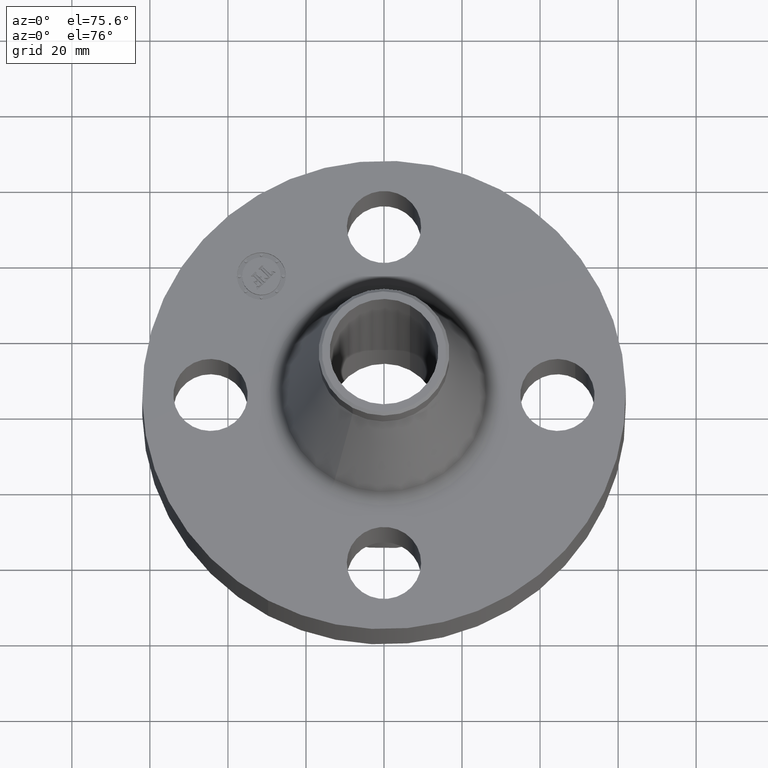
[diagram: clean part render]
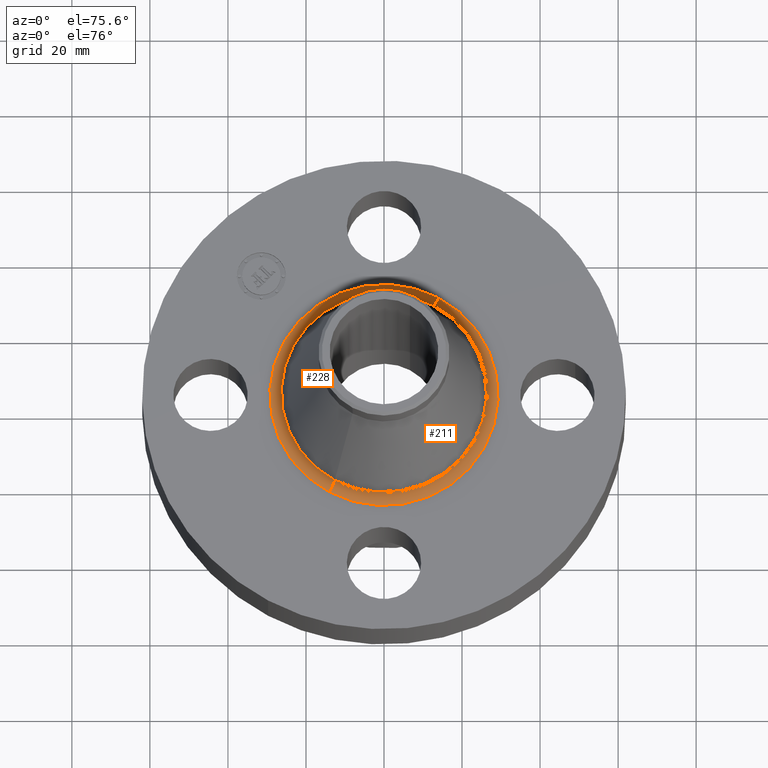
[diagram: same view with one multi-face feature highlighted, each face labeled with its STEP entity id]
A machine part, auxiliary view. The highlighted faces form ONE feature: a constant-radius fillet chain: 2 tangent blend faces with common blend radius 3.048 mm. The faces share edges in the B-rep.
Their STEP definitions:
[1] entity #228 (Torus):
#175=AXIS2_PLACEMENT_3D('Torus Axis2P3D',#172,#173,#174) ;
#188=AXIS2_PLACEMENT_3D('Circle Axis2P3D',#186,#187,$) ;
#202=AXIS2_PLACEMENT_3D('Circle Axis2P3D',#200,#201,$) ;
#214=AXIS2_PLACEMENT_3D('Circle Axis2P3D',#212,#213,$) ;
#219=AXIS2_PLACEMENT_3D('Circle Axis2P3D',#217,#218,$) ;
#172=CARTESIAN_POINT('Axis2P3D Location',(0.,0.,0.740000000003)) ;
#181=CARTESIAN_POINT('Vertex',(0.552380621975,1.01112594624,0.620000000002)) ;
#183=CARTESIAN_POINT('Vertex',(-0.552380621975,-1.01112594624,0.620000000002)) ;
#186=CARTESIAN_POINT('Axis2P3D Location',(0.552380621975,1.01112594624,0.740000000003)) ;
#190=CARTESIAN_POINT('Vertex',(0.49679544257,0.909377957827,0.70905432688)) ;
#197=CARTESIAN_POINT('Vertex',(-0.49679544257,-0.909377957827,0.70905432688)) ;
#200=CARTESIAN_POINT('Axis2P3D Location',(-0.552380621975,-1.01112594624,0.740000000003)) ;
#212=CARTESIAN_POINT('Axis2P3D Location',(0.,0.,0.620000000002)) ;
#217=CARTESIAN_POINT('Axis2P3D Location',(0.,0.,0.70905432688)) ;
#173=DIRECTION('Axis2P3D Direction',(0.,0.,-0.0393700787402)) ;
#174=DIRECTION('Axis2P3D XDirection',(-0.0188750212049,-0.0345504945626,0.)) ;
#187=DIRECTION('Axis2P3D Direction',(-0.0345504945626,0.0188750212049,0.)) ;
#201=DIRECTION('Axis2P3D Direction',(0.0345504945626,-0.0188750212049,0.)) ;
#213=DIRECTION('Axis2P3D Direction',(0.,0.,-0.0393700787402)) ;
#218=DIRECTION('Axis2P3D Direction',(0.,0.,-0.0393700787402)) ;
#223=ORIENTED_EDGE('',*,*,#216,.F.) ;
#224=ORIENTED_EDGE('',*,*,#204,.T.) ;
#225=ORIENTED_EDGE('',*,*,#221,.T.) ;
#226=ORIENTED_EDGE('',*,*,#192,.F.) ;
#228=ADVANCED_FACE('PartBody',(#227),#176,.F.) ;
#189=CIRCLE('generated circle',#188,0.12) ;
#203=CIRCLE('generated circle',#202,0.12) ;
#215=CIRCLE('generated circle',#214,1.1521718755) ;
#220=CIRCLE('generated circle',#219,1.03623066059) ;
#176=TOROIDAL_SURFACE('homeo Torus',#175,1.1521718755,0.12) ;
#192=EDGE_CURVE('',#182,#191,#189,.T.) ;
#204=EDGE_CURVE('',#184,#198,#203,.T.) ;
#216=EDGE_CURVE('',#184,#182,#215,.T.) ;
#221=EDGE_CURVE('',#198,#191,#220,.T.) ;
#222=EDGE_LOOP('',(#223,#224,#225,#226)) ;
#227=FACE_OUTER_BOUND('',#222,.T.) ;
#182=VERTEX_POINT('',#181) ;
#184=VERTEX_POINT('',#183) ;
#191=VERTEX_POINT('',#190) ;
#198=VERTEX_POINT('',#197) ;
[2] entity #211 (Torus):
#175=AXIS2_PLACEMENT_3D('Torus Axis2P3D',#172,#173,#174) ;
#179=AXIS2_PLACEMENT_3D('Circle Axis2P3D',#177,#178,$) ;
#188=AXIS2_PLACEMENT_3D('Circle Axis2P3D',#186,#187,$) ;
#195=AXIS2_PLACEMENT_3D('Circle Axis2P3D',#193,#194,$) ;
#202=AXIS2_PLACEMENT_3D('Circle Axis2P3D',#200,#201,$) ;
#172=CARTESIAN_POINT('Axis2P3D Location',(0.,0.,0.740000000003)) ;
#177=CARTESIAN_POINT('Axis2P3D Location',(0.,0.,0.620000000002)) ;
#181=CARTESIAN_POINT('Vertex',(0.552380621975,1.01112594624,0.620000000002)) ;
#183=CARTESIAN_POINT('Vertex',(-0.552380621975,-1.01112594624,0.620000000002)) ;
#186=CARTESIAN_POINT('Axis2P3D Location',(0.552380621975,1.01112594624,0.740000000003)) ;
#190=CARTESIAN_POINT('Vertex',(0.49679544257,0.909377957827,0.70905432688)) ;
#193=CARTESIAN_POINT('Axis2P3D Location',(0.,0.,0.70905432688)) ;
#197=CARTESIAN_POINT('Vertex',(-0.49679544257,-0.909377957827,0.70905432688)) ;
#200=CARTESIAN_POINT('Axis2P3D Location',(-0.552380621975,-1.01112594624,0.740000000003)) ;
#173=DIRECTION('Axis2P3D Direction',(0.,0.,-0.0393700787402)) ;
#174=DIRECTION('Axis2P3D XDirection',(-0.0188750212049,-0.0345504945626,0.)) ;
#178=DIRECTION('Axis2P3D Direction',(0.,0.,-0.0393700787402)) ;
#187=DIRECTION('Axis2P3D Direction',(-0.0345504945626,0.0188750212049,0.)) ;
#194=DIRECTION('Axis2P3D Direction',(0.,0.,-0.0393700787402)) ;
#201=DIRECTION('Axis2P3D Direction',(0.0345504945626,-0.0188750212049,0.)) ;
#206=ORIENTED_EDGE('',*,*,#185,.F.) ;
#207=ORIENTED_EDGE('',*,*,#192,.T.) ;
#208=ORIENTED_EDGE('',*,*,#199,.T.) ;
#209=ORIENTED_EDGE('',*,*,#204,.F.) ;
#211=ADVANCED_FACE('PartBody',(#210),#176,.F.) ;
#180=CIRCLE('generated circle',#179,1.1521718755) ;
#189=CIRCLE('generated circle',#188,0.12) ;
#196=CIRCLE('generated circle',#195,1.03623066059) ;
#203=CIRCLE('generated circle',#202,0.12) ;
#176=TOROIDAL_SURFACE('homeo Torus',#175,1.1521718755,0.12) ;
#185=EDGE_CURVE('',#182,#184,#180,.T.) ;
#192=EDGE_CURVE('',#182,#191,#189,.T.) ;
#199=EDGE_CURVE('',#191,#198,#196,.T.) ;
#204=EDGE_CURVE('',#184,#198,#203,.T.) ;
#205=EDGE_LOOP('',(#206,#207,#208,#209)) ;
#210=FACE_OUTER_BOUND('',#205,.T.) ;
#182=VERTEX_POINT('',#181) ;
#184=VERTEX_POINT('',#183) ;
#191=VERTEX_POINT('',#190) ;
#198=VERTEX_POINT('',#197) ;